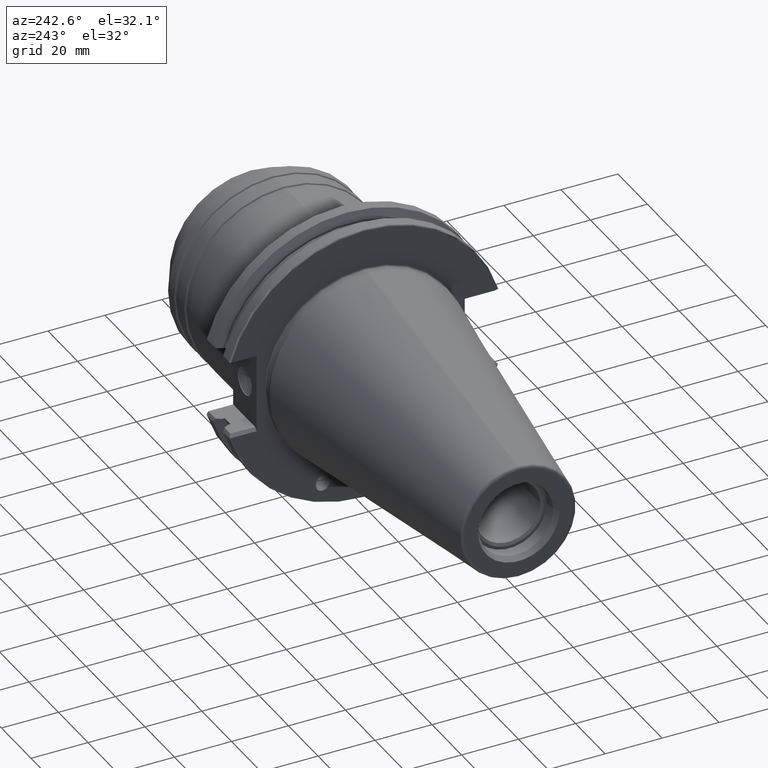
[diagram: clean part render]
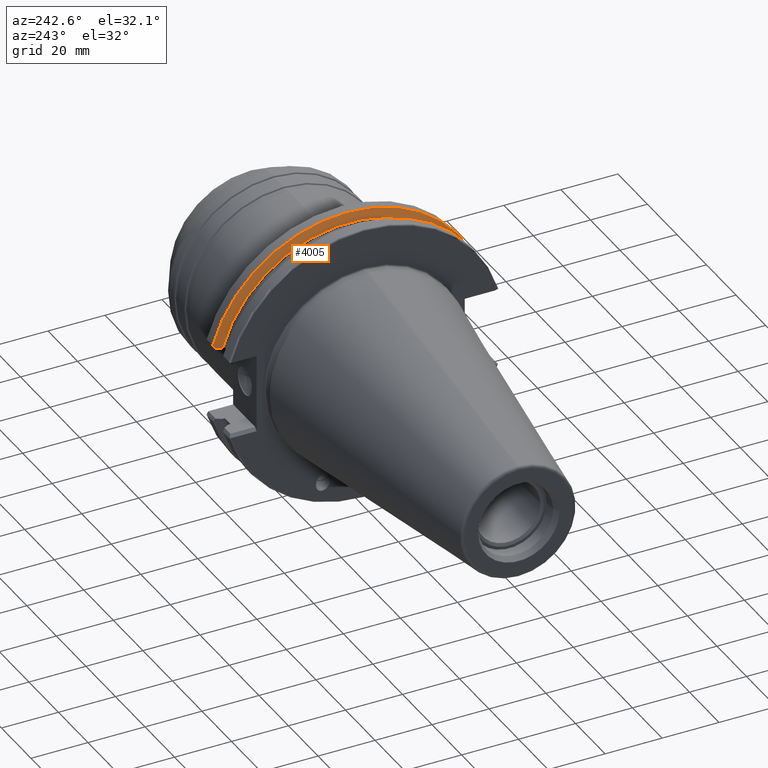
[diagram: same view with one face highlighted and labeled with its STEP entity id]
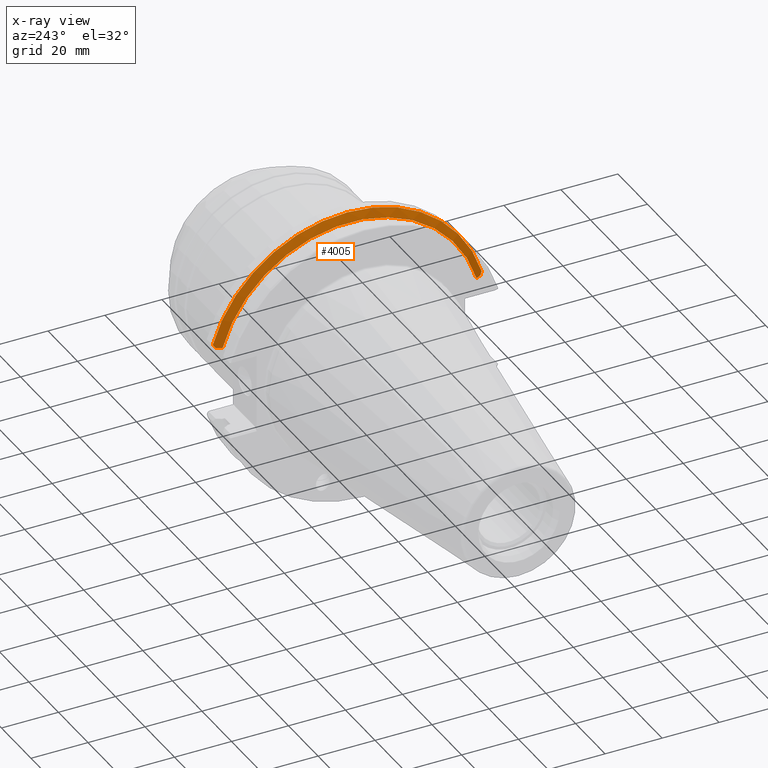
[diagram: x-ray of the same camera — body ghosted, the highlighted face saturated]
A machine part, auxiliary view. The second image highlights one B-rep face of the part: STEP entity #4005.
The next image is the same camera in x-ray: the body ghosted, the highlighted face saturated — about 0% of this face is hidden behind the body in this view.
In plain terms, the highlighted conical surface has half-angle 60 deg.
Its self-contained STEP definition (entity closure, byte-faithful):
#1568=CARTESIAN_POINT('',(1.466020903500E1,4.718588394598E1,1.397721404596E1));
#1569=CARTESIAN_POINT('',(1.456075995081E1,4.705725843275E1,1.380496317938E1));
#1570=CARTESIAN_POINT('',(1.436305034456E1,4.680079155621E1,1.346151155284E1));
#1571=CARTESIAN_POINT('',(1.416773059589E1,4.654588943364E1,1.312015539104E1));
#1572=CARTESIAN_POINT('',(1.407067141749E1,4.641882868244E1,1.295E1));
#1574=CARTESIAN_POINT('',(1.466020903500E1,0.E0,0.E0));
#1575=DIRECTION('',(1.E0,0.E0,0.E0));
#1576=DIRECTION('',(0.E0,9.588190794205E-1,2.840175574490E-1));
#1577=AXIS2_PLACEMENT_3D('',#1574,#1575,#1576);
#1579=CARTESIAN_POINT('',(1.407067141749E1,-4.641882868244E1,1.295E1));
#1580=CARTESIAN_POINT('',(1.416736219569E1,-4.654540715873E1,1.311950954506E1));
#1581=CARTESIAN_POINT('',(1.436230977400E1,-4.679982803437E1,1.346022123752E1));
#1582=CARTESIAN_POINT('',(1.456038785708E1,-4.705677717395E1,1.380431869414E1));
#1583=CARTESIAN_POINT('',(1.466020903500E1,-4.718588394598E1,1.397721404596E1));
#1585=CARTESIAN_POINT('',(1.30518E1,-4.458398463618E1,1.295E1));
#1586=CARTESIAN_POINT('',(1.321940014688E1,-4.488627445840E1,1.295E1));
#1587=CARTESIAN_POINT('',(1.355681503490E1,-4.549437004922E1,1.295E1));
#1588=CARTESIAN_POINT('',(1.389865056312E1,-4.610950226528E1,1.295E1));
#1589=CARTESIAN_POINT('',(1.407067141749E1,-4.641882868244E1,1.295E1));
#1591=CARTESIAN_POINT('',(1.30518E1,0.E0,0.E0));
#1592=DIRECTION('',(-1.E0,0.E0,0.E0));
#1593=DIRECTION('',(0.E0,-9.603101011217E-1,2.789345975020E-1));
#1594=AXIS2_PLACEMENT_3D('',#1591,#1592,#1593);
#1596=CARTESIAN_POINT('',(1.407067141749E1,4.641882868244E1,1.295E1));
#1597=CARTESIAN_POINT('',(1.389867336044E1,4.610954325922E1,1.295E1));
#1598=CARTESIAN_POINT('',(1.355686057872E1,4.549445206539E1,1.295E1));
#1599=CARTESIAN_POINT('',(1.321942289157E1,4.488631548157E1,1.295E1));
#1600=CARTESIAN_POINT('',(1.30518E1,4.458398463618E1,1.295E1));
#1760=CARTESIAN_POINT('',(1.30518E1,4.458398463618E1,1.295E1));
#1761=VERTEX_POINT('',#1760);
#1776=CARTESIAN_POINT('',(1.30518E1,-4.458398463618E1,1.295E1));
#1777=VERTEX_POINT('',#1776);
#1784=VERTEX_POINT('',#1568);
#1785=VERTEX_POINT('',#1572);
#1786=VERTEX_POINT('',#1579);
#1787=VERTEX_POINT('',#1583);
#3992=CARTESIAN_POINT('',(1.385600451750E1,0.E0,0.E0));
#3993=DIRECTION('',(1.E0,0.E0,0.E0));
#3994=DIRECTION('',(0.E0,0.E0,1.E0));
#3995=AXIS2_PLACEMENT_3D('',#3992,#3993,#3994);
#3996=CONICAL_SURFACE('',#3995,4.781957691601E1,6.E1);
#3997=ORIENTED_EDGE('',*,*,#3812,.F.);
#3998=ORIENTED_EDGE('',*,*,#3468,.T.);
#3999=ORIENTED_EDGE('',*,*,#3840,.F.);
#4000=ORIENTED_EDGE('',*,*,#3867,.F.);
#4001=ORIENTED_EDGE('',*,*,#3960,.T.);
#4002=ORIENTED_EDGE('',*,*,#3784,.F.);
#4003=EDGE_LOOP('',(#3997,#3998,#3999,#4000,#4001,#4002));
#4004=FACE_OUTER_BOUND('',#4003,.F.);
#4005=ADVANCED_FACE('',(#4004),#3996,.T.);
#1573=B_SPLINE_CURVE_WITH_KNOTS('',3,(#1568,#1569,#1570,#1571,#1572),
.UNSPECIFIED.,.F.,.F.,(4,1,4),(0.E0,5.E-1,1.E0),.UNSPECIFIED.);
#1578=CIRCLE('',#1577,4.92125E1);
#1584=B_SPLINE_CURVE_WITH_KNOTS('',3,(#1579,#1580,#1581,#1582,#1583),
.UNSPECIFIED.,.F.,.F.,(4,1,4),(0.E0,5.E-1,1.E0),.UNSPECIFIED.);
#1590=B_SPLINE_CURVE_WITH_KNOTS('',3,(#1585,#1586,#1587,#1588,#1589),
.UNSPECIFIED.,.F.,.F.,(4,1,4),(0.E0,5.E-1,1.E0),.UNSPECIFIED.);
#1595=CIRCLE('',#1594,4.642665383203E1);
#1601=B_SPLINE_CURVE_WITH_KNOTS('',3,(#1596,#1597,#1598,#1599,#1600),
.UNSPECIFIED.,.F.,.F.,(4,1,4),(0.E0,5.E-1,1.E0),.UNSPECIFIED.);
#3468=EDGE_CURVE('',#1784,#1787,#1578,.T.);
#3784=EDGE_CURVE('',#1785,#1761,#1601,.T.);
#3812=EDGE_CURVE('',#1784,#1785,#1573,.T.);
#3840=EDGE_CURVE('',#1786,#1787,#1584,.T.);
#3867=EDGE_CURVE('',#1777,#1786,#1590,.T.);
#3960=EDGE_CURVE('',#1777,#1761,#1595,.T.);